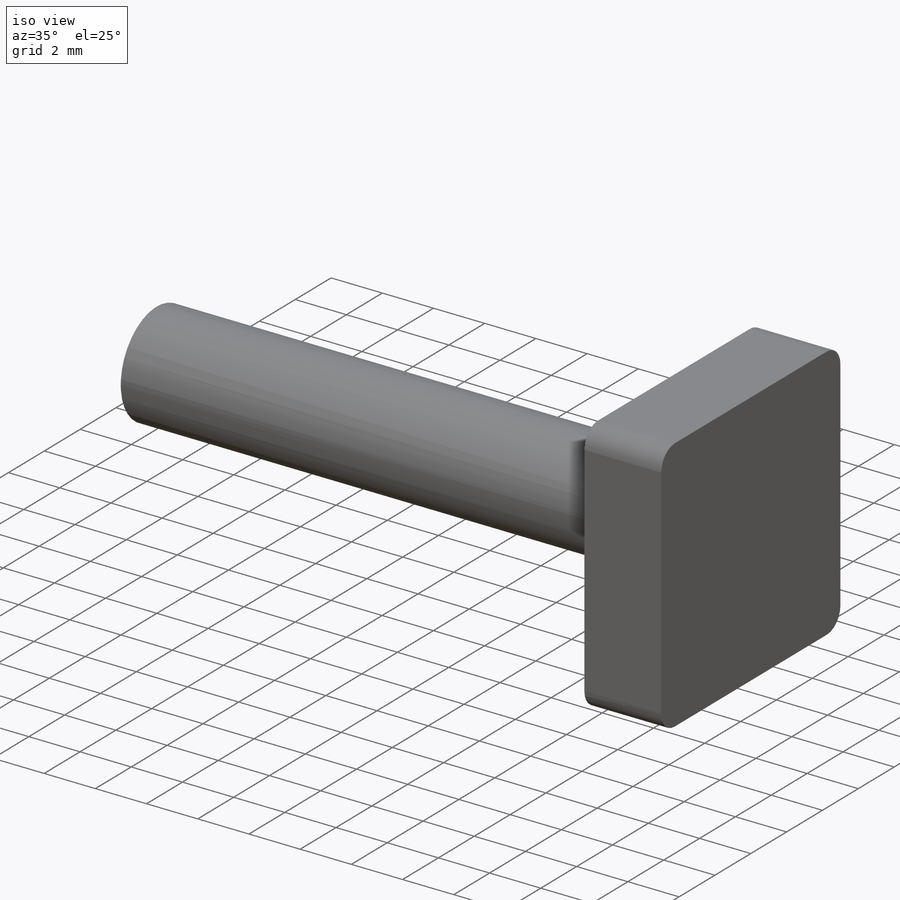
[diagram: iso view]
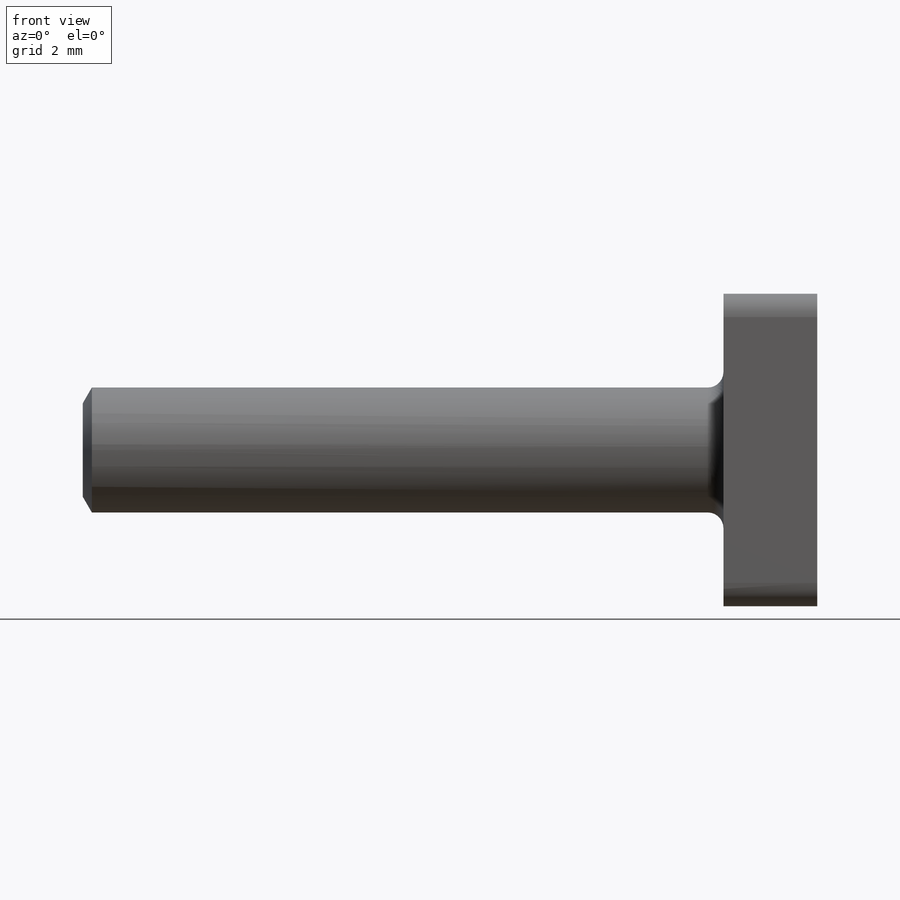
[diagram: front view]
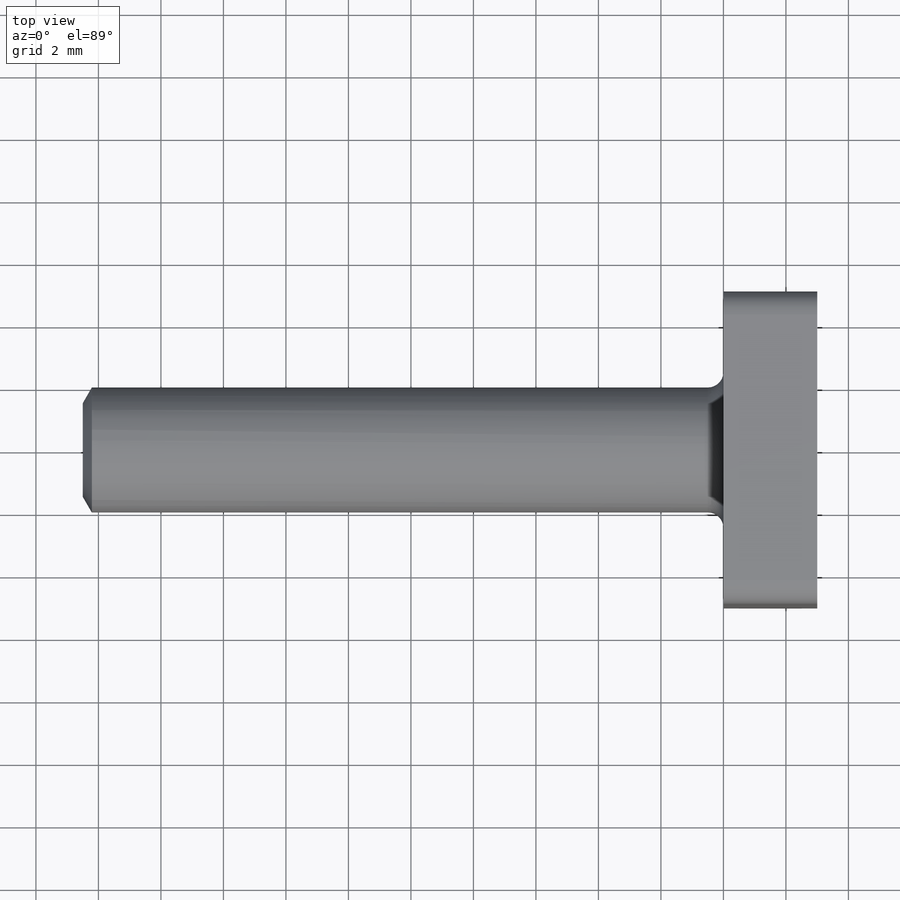
[diagram: top view]
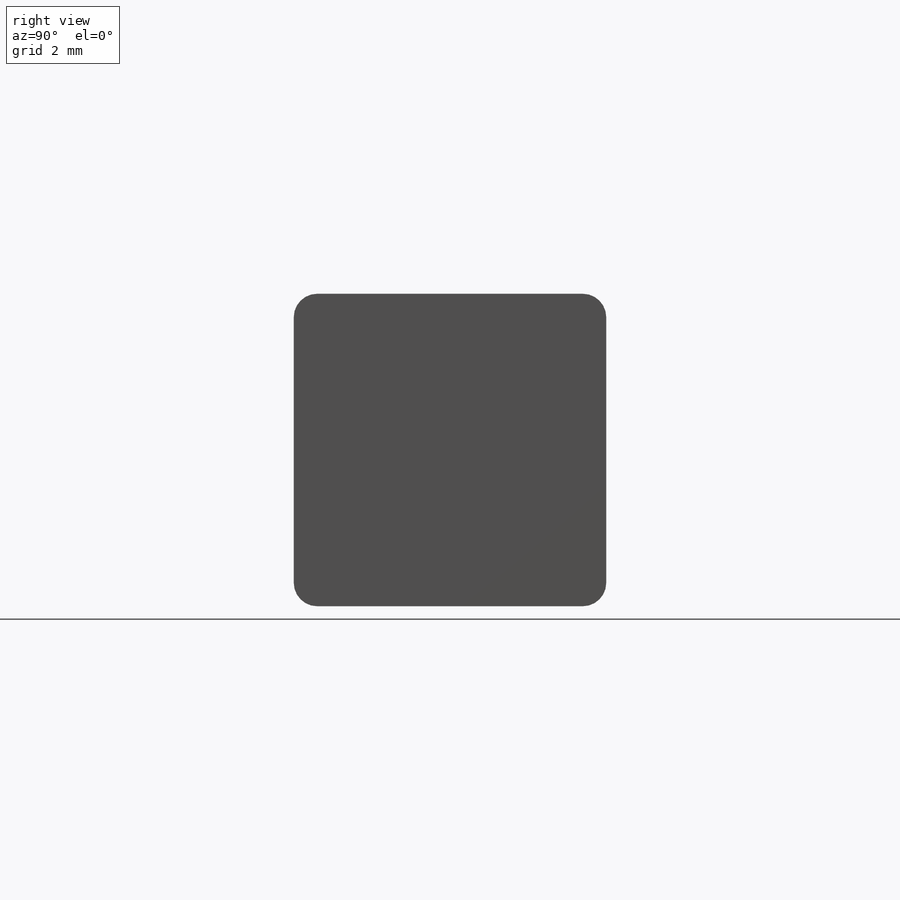
[diagram: right view]
SOLIDWORKS PART (.sldprt)
format: sldprt  version: not decoded by parser v0  size: 434,688 bytes
history: native  units: mm
features: sketch x2, extrude x2, fillet x2, material x1, thread x1, chamfer x1 (+11 scaffold rows collapsed)
feature tree (20):
  scaffold x11  (default folders/planes/origin — collapsed)
  material  "Ti-6Al-4VSolution treated and aged (SS)"
  sketch  "Sketch1"  dims[D1=10.0mm D2=10.0mm]
  extrude  "head"  Depth=3mm
  sketch  "Sketch2"  dims[D1=4.0mm]
  extrude  "shaft"  [1 undecoded]
  thread  "Cosmetic Thread1"  Diameter=9.5mm  [1 undecoded]
  fillet  "head fillet"  Radius=0.75mm
  fillet  "Fillet1"  Radius=0.5mm
  chamfer  "Chamfer1"  Distance=0.5mm Angle=30deg
decode coverage: 7 of 8 modeling features carry decoded parameters
note: 2 parameter values undecoded
note: suppression state not decoded; provenance and decode notes live in map.json
